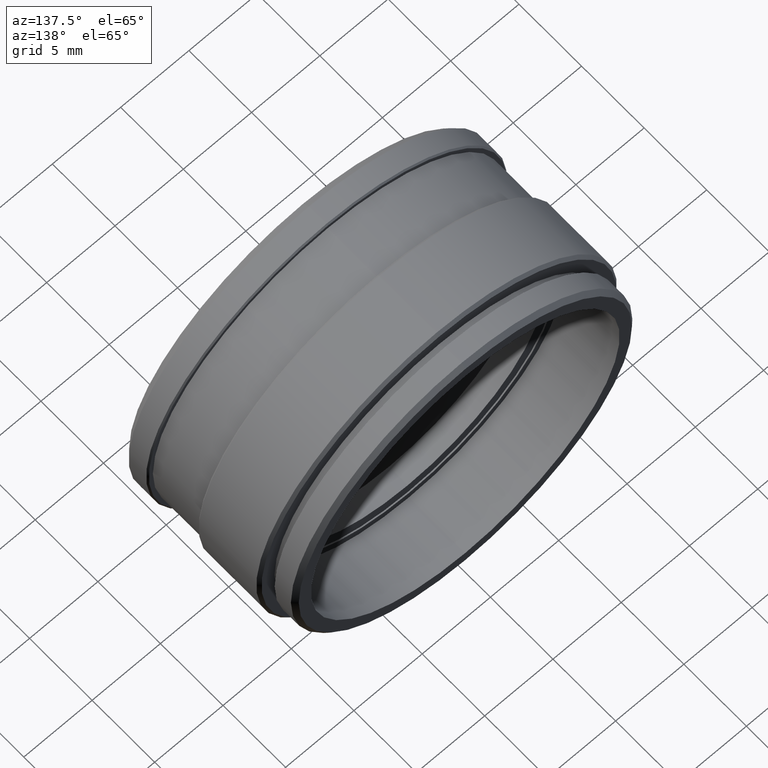
[diagram: clean part render]
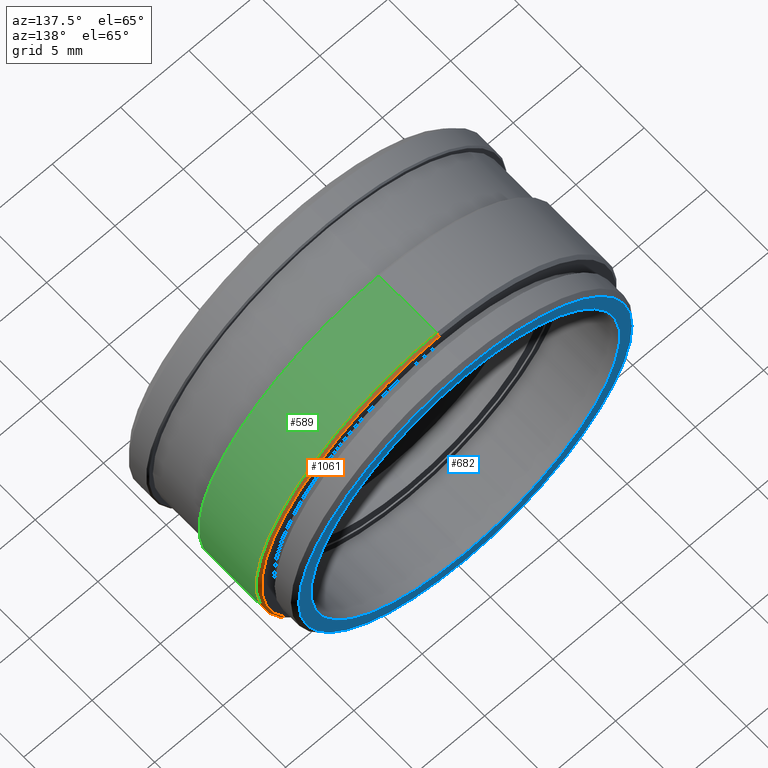
[diagram: same view with three faces highlighted in distinct colors, each labeled with its STEP entity id]
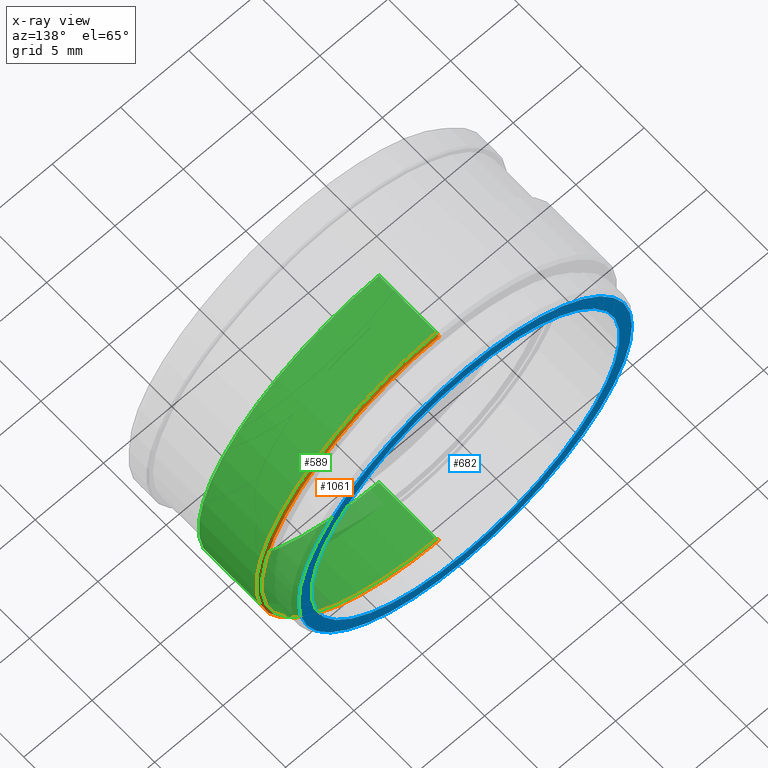
[diagram: x-ray of the same camera — body ghosted, the three highlighted faces saturated]
A machine part, auxiliary view with three faces highlighted in distinct colors.
The next image is the same camera in x-ray (body ghosted, the three faces saturated) — at least one of them is partly hidden behind the body in this view.
Their STEP definitions:

[orange] entity #1061 — the highlighted conical surface has half-angle 45 deg.
#13 = EDGE_CURVE ( 'NONE', #863, #395, #288, .T. ) ;
#51 = CARTESIAN_POINT ( 'NONE',  ( 0.0000000000000000000, 10.89999999999963600, 0.0000000000000000000 ) ) ;
#66 = CONICAL_SURFACE ( 'NONE', #283, 12.99999846960417900, 0.7853980998970280200 ) ;
#78 = EDGE_CURVE ( 'NONE', #863, #433, #1075, .T. ) ;
#180 = CARTESIAN_POINT ( 'NONE',  ( 1.604287213173360000E-015, 10.89999999999963600, 12.99999846960417900 ) ) ;
#196 = DIRECTION ( 'NONE',  ( 0.0000000000000000000, 0.0000000000000000000, -1.000000000000000000 ) ) ;
#222 = DIRECTION ( 'NONE',  ( 8.659560012469181200E-017, -0.7071068260881239200, 0.7071067362849683400 ) ) ;
#224 = CIRCLE ( 'NONE', #597, 13.20000000000072900 ) ;
#245 = EDGE_CURVE ( 'NONE', #433, #891, #672, .T. ) ;
#283 = AXIS2_PLACEMENT_3D ( 'NONE', #406, #797, #196 ) ;
#288 = LINE ( 'NONE', #459, #610 ) ;
#296 = ORIENTED_EDGE ( 'NONE', *, *, #245, .T. ) ;
#334 = DIRECTION ( 'NONE',  ( 0.0000000000000000000, 0.0000000000000000000, -1.000000000000000000 ) ) ;
#363 = EDGE_LOOP ( 'NONE', ( #1047, #296, #1084, #694 ) ) ;
#375 = DIRECTION ( 'NONE',  ( -0.0000000000000000000, -1.000000000000000000, -0.0000000000000000000 ) ) ;
#383 = DIRECTION ( 'NONE',  ( -0.0000000000000000000, -1.000000000000000000, -0.0000000000000000000 ) ) ;
#395 = VERTEX_POINT ( 'NONE', #726 ) ;
#406 = CARTESIAN_POINT ( 'NONE',  ( 0.0000000000000000000, 10.89999999999963600, 0.0000000000000000000 ) ) ;
#433 = VERTEX_POINT ( 'NONE', #180 ) ;
#459 = CARTESIAN_POINT ( 'NONE',  ( 0.0000000000000000000, 10.89999999999963600, -12.99999846960417900 ) ) ;
#511 = CARTESIAN_POINT ( 'NONE',  ( 0.0000000000000000000, 10.89999999999963600, -12.99999846960417900 ) ) ;
#586 = EDGE_CURVE ( 'NONE', #395, #891, #224, .T. ) ;
#597 = AXIS2_PLACEMENT_3D ( 'NONE', #676, #383, #1135 ) ;
#610 = VECTOR ( 'NONE', #1192, 1000.000000000000000 ) ;
#622 = CARTESIAN_POINT ( 'NONE',  ( 1.592040651472124700E-015, 10.89999999999963600, 12.99999846960417900 ) ) ;
#665 = CARTESIAN_POINT ( 'NONE',  ( 1.616533774874595300E-015, 10.69999844420272200, 13.20000000000072900 ) ) ;
#672 = LINE ( 'NONE', #622, #700 ) ;
#676 = CARTESIAN_POINT ( 'NONE',  ( 0.0000000000000000000, 10.69999844420272200, 0.0000000000000000000 ) ) ;
#694 = ORIENTED_EDGE ( 'NONE', *, *, #13, .F. ) ;
#700 = VECTOR ( 'NONE', #222, 1000.000000000000000 ) ;
#726 = CARTESIAN_POINT ( 'NONE',  ( 0.0000000000000000000, 10.69999844420272200, -13.20000000000072900 ) ) ;
#770 = FACE_OUTER_BOUND ( 'NONE', #363, .T. ) ;
#797 = DIRECTION ( 'NONE',  ( -0.0000000000000000000, -1.000000000000000000, -0.0000000000000000000 ) ) ;
#863 = VERTEX_POINT ( 'NONE', #511 ) ;
#891 = VERTEX_POINT ( 'NONE', #665 ) ;
#1047 = ORIENTED_EDGE ( 'NONE', *, *, #78, .T. ) ;
#1061 = ADVANCED_FACE ( 'NONE', ( #770 ), #66, .T. ) ;
#1075 = CIRCLE ( 'NONE', #1178, 12.99999846960417900 ) ;
#1084 = ORIENTED_EDGE ( 'NONE', *, *, #586, .F. ) ;
#1135 = DIRECTION ( 'NONE',  ( 0.0000000000000000000, 0.0000000000000000000, -1.000000000000000000 ) ) ;
#1178 = AXIS2_PLACEMENT_3D ( 'NONE', #51, #375, #334 ) ;
#1192 = DIRECTION ( 'NONE',  ( 0.0000000000000000000, -0.7071068260881239200, -0.7071067362849683400 ) ) ;

[blue] entity #682 — the highlighted planar face has unit normal (0, 1, 0).
#7 = AXIS2_PLACEMENT_3D ( 'NONE', #159, #690, #734 ) ;
#33 = CIRCLE ( 'NONE', #225, 12.20000000000436600 ) ;
#45 = PLANE ( 'NONE',  #683 ) ;
#53 = EDGE_CURVE ( 'NONE', #1035, #462, #543, .T. ) ;
#69 = ORIENTED_EDGE ( 'NONE', *, *, #53, .F. ) ;
#79 = CARTESIAN_POINT ( 'NONE',  ( 0.0000000000000000000, 12.99999999999954700, 0.0000000000000000000 ) ) ;
#123 = VERTEX_POINT ( 'NONE', #569 ) ;
#133 = CARTESIAN_POINT ( 'NONE',  ( 0.0000000000000000000, 12.99999999999954700, -11.29999999999927200 ) ) ;
#141 = DIRECTION ( 'NONE',  ( -0.0000000000000000000, -1.000000000000000000, -0.0000000000000000000 ) ) ;
#154 = DIRECTION ( 'NONE',  ( 0.0000000000000000000, 0.0000000000000000000, -1.000000000000000000 ) ) ;
#159 = CARTESIAN_POINT ( 'NONE',  ( 0.0000000000000000000, 13.00000000037789700, 0.0000000000000000000 ) ) ;
#162 = ORIENTED_EDGE ( 'NONE', *, *, #649, .T. ) ;
#183 = VERTEX_POINT ( 'NONE', #133 ) ;
#225 = AXIS2_PLACEMENT_3D ( 'NONE', #1064, #1062, #999 ) ;
#367 = DIRECTION ( 'NONE',  ( 0.0000000000000000000, -0.0000000000000000000, 1.000000000000000000 ) ) ;
#393 = ORIENTED_EDGE ( 'NONE', *, *, #614, .F. ) ;
#441 = EDGE_CURVE ( 'NONE', #123, #183, #838, .T. ) ;
#462 = VERTEX_POINT ( 'NONE', #1036 ) ;
#528 = EDGE_LOOP ( 'NONE', ( #69, #393 ) ) ;
#536 = AXIS2_PLACEMENT_3D ( 'NONE', #699, #1068, #1012 ) ;
#543 = CIRCLE ( 'NONE', #7, 12.20000000000436600 ) ;
#562 = FACE_OUTER_BOUND ( 'NONE', #528, .T. ) ;
#569 = CARTESIAN_POINT ( 'NONE',  ( 1.383850883036420100E-015, 12.99999999999954700, 11.29999999999927200 ) ) ;
#614 = EDGE_CURVE ( 'NONE', #462, #1035, #33, .T. ) ;
#649 = EDGE_CURVE ( 'NONE', #183, #123, #992, .T. ) ;
#652 = DIRECTION ( 'NONE',  ( 0.0000000000000000000, 1.000000000000000000, 0.0000000000000000000 ) ) ;
#682 = ADVANCED_FACE ( 'NONE', ( #884, #562 ), #45, .T. ) ;
#683 = AXIS2_PLACEMENT_3D ( 'NONE', #812, #652, #367 ) ;
#690 = DIRECTION ( 'NONE',  ( -0.0000000000000000000, -1.000000000000000000, -0.0000000000000000000 ) ) ;
#699 = CARTESIAN_POINT ( 'NONE',  ( 0.0000000000000000000, 12.99999999999954700, 0.0000000000000000000 ) ) ;
#734 = DIRECTION ( 'NONE',  ( 0.0000000000000000000, 0.0000000000000000000, -1.000000000000000000 ) ) ;
#772 = AXIS2_PLACEMENT_3D ( 'NONE', #79, #141, #154 ) ;
#795 = ORIENTED_EDGE ( 'NONE', *, *, #441, .T. ) ;
#812 = CARTESIAN_POINT ( 'NONE',  ( 5.465057416924970400E-009, 13.00000000018872000, 0.0000000000000000000 ) ) ;
#838 = CIRCLE ( 'NONE', #536, 11.29999999999927200 ) ;
#884 = FACE_BOUND ( 'NONE', #964, .T. ) ;
#964 = EDGE_LOOP ( 'NONE', ( #162, #795 ) ) ;
#992 = CIRCLE ( 'NONE', #772, 11.29999999999927200 ) ;
#999 = DIRECTION ( 'NONE',  ( 0.0000000000000000000, 0.0000000000000000000, -1.000000000000000000 ) ) ;
#1012 = DIRECTION ( 'NONE',  ( 0.0000000000000000000, 0.0000000000000000000, -1.000000000000000000 ) ) ;
#1016 = CARTESIAN_POINT ( 'NONE',  ( 0.0000000000000000000, 13.00000000037789700, -12.20000000000436600 ) ) ;
#1035 = VERTEX_POINT ( 'NONE', #1016 ) ;
#1036 = CARTESIAN_POINT ( 'NONE',  ( 1.512438796947471200E-015, 13.00000000037789700, 12.20000000000436600 ) ) ;
#1062 = DIRECTION ( 'NONE',  ( -0.0000000000000000000, -1.000000000000000000, -0.0000000000000000000 ) ) ;
#1064 = CARTESIAN_POINT ( 'NONE',  ( 0.0000000000000000000, 13.00000000037789700, 0.0000000000000000000 ) ) ;
#1068 = DIRECTION ( 'NONE',  ( -0.0000000000000000000, -1.000000000000000000, -0.0000000000000000000 ) ) ;

[green] entity #589 — the highlighted cylindrical surface (partial cylindrical patch) has radius 13.2 mm, axis along (-0, -1, -0).
#2 = VERTEX_POINT ( 'NONE', #696 ) ;
#50 = CARTESIAN_POINT ( 'NONE',  ( 0.0000000000000000000, -5.278745474983225000, 0.0000000000000000000 ) ) ;
#52 = VECTOR ( 'NONE', #1150, 1000.000000000000000 ) ;
#68 = DIRECTION ( 'NONE',  ( -0.0000000000000000000, -1.000000000000000000, -0.0000000000000000000 ) ) ;
#100 = DIRECTION ( 'NONE',  ( 0.0000000000000000000, 0.0000000000000000000, -1.000000000000000000 ) ) ;
#106 = DIRECTION ( 'NONE',  ( 0.0000000000000000000, 0.0000000000000000000, -1.000000000000000000 ) ) ;
#113 = DIRECTION ( 'NONE',  ( -0.0000000000000000000, -1.000000000000000000, -0.0000000000000000000 ) ) ;
#153 = EDGE_CURVE ( 'NONE', #2, #343, #201, .T. ) ;
#201 = CIRCLE ( 'NONE', #724, 13.20000000000072900 ) ;
#209 = ORIENTED_EDGE ( 'NONE', *, *, #586, .T. ) ;
#224 = CIRCLE ( 'NONE', #597, 13.20000000000072900 ) ;
#272 = LINE ( 'NONE', #1039, #52 ) ;
#299 = AXIS2_PLACEMENT_3D ( 'NONE', #50, #1089, #100 ) ;
#306 = ORIENTED_EDGE ( 'NONE', *, *, #153, .F. ) ;
#321 = CARTESIAN_POINT ( 'NONE',  ( 0.0000000000000000000, -5.278745474983225000, -13.20000000000072900 ) ) ;
#343 = VERTEX_POINT ( 'NONE', #640 ) ;
#371 = VECTOR ( 'NONE', #68, 1000.000000000000000 ) ;
#383 = DIRECTION ( 'NONE',  ( -0.0000000000000000000, -1.000000000000000000, -0.0000000000000000000 ) ) ;
#395 = VERTEX_POINT ( 'NONE', #726 ) ;
#454 = CARTESIAN_POINT ( 'NONE',  ( 0.0000000000000000000, 6.100001241680731200, 0.0000000000000000000 ) ) ;
#586 = EDGE_CURVE ( 'NONE', #395, #891, #224, .T. ) ;
#589 = ADVANCED_FACE ( 'NONE', ( #1034 ), #613, .T. ) ;
#597 = AXIS2_PLACEMENT_3D ( 'NONE', #676, #383, #1135 ) ;
#613 = CYLINDRICAL_SURFACE ( 'NONE', #299, 13.20000000000072900 ) ;
#640 = CARTESIAN_POINT ( 'NONE',  ( 1.616533774874595300E-015, 6.100001241680731200, 13.20000000000072900 ) ) ;
#665 = CARTESIAN_POINT ( 'NONE',  ( 1.616533774874595300E-015, 10.69999844420272200, 13.20000000000072900 ) ) ;
#676 = CARTESIAN_POINT ( 'NONE',  ( 0.0000000000000000000, 10.69999844420272200, 0.0000000000000000000 ) ) ;
#695 = EDGE_CURVE ( 'NONE', #395, #2, #825, .T. ) ;
#696 = CARTESIAN_POINT ( 'NONE',  ( 0.0000000000000000000, 6.100001241680731200, -13.20000000000072900 ) ) ;
#711 = EDGE_CURVE ( 'NONE', #891, #343, #272, .T. ) ;
#724 = AXIS2_PLACEMENT_3D ( 'NONE', #454, #113, #106 ) ;
#726 = CARTESIAN_POINT ( 'NONE',  ( 0.0000000000000000000, 10.69999844420272200, -13.20000000000072900 ) ) ;
#825 = LINE ( 'NONE', #321, #371 ) ;
#844 = ORIENTED_EDGE ( 'NONE', *, *, #695, .F. ) ;
#891 = VERTEX_POINT ( 'NONE', #665 ) ;
#1034 = FACE_OUTER_BOUND ( 'NONE', #1193, .T. ) ;
#1039 = CARTESIAN_POINT ( 'NONE',  ( 1.616533774874595300E-015, -5.278745474983225000, 13.20000000000072900 ) ) ;
#1089 = DIRECTION ( 'NONE',  ( -0.0000000000000000000, -1.000000000000000000, -0.0000000000000000000 ) ) ;
#1094 = ORIENTED_EDGE ( 'NONE', *, *, #711, .T. ) ;
#1135 = DIRECTION ( 'NONE',  ( 0.0000000000000000000, 0.0000000000000000000, -1.000000000000000000 ) ) ;
#1150 = DIRECTION ( 'NONE',  ( -0.0000000000000000000, -1.000000000000000000, -0.0000000000000000000 ) ) ;
#1193 = EDGE_LOOP ( 'NONE', ( #209, #1094, #306, #844 ) ) ;